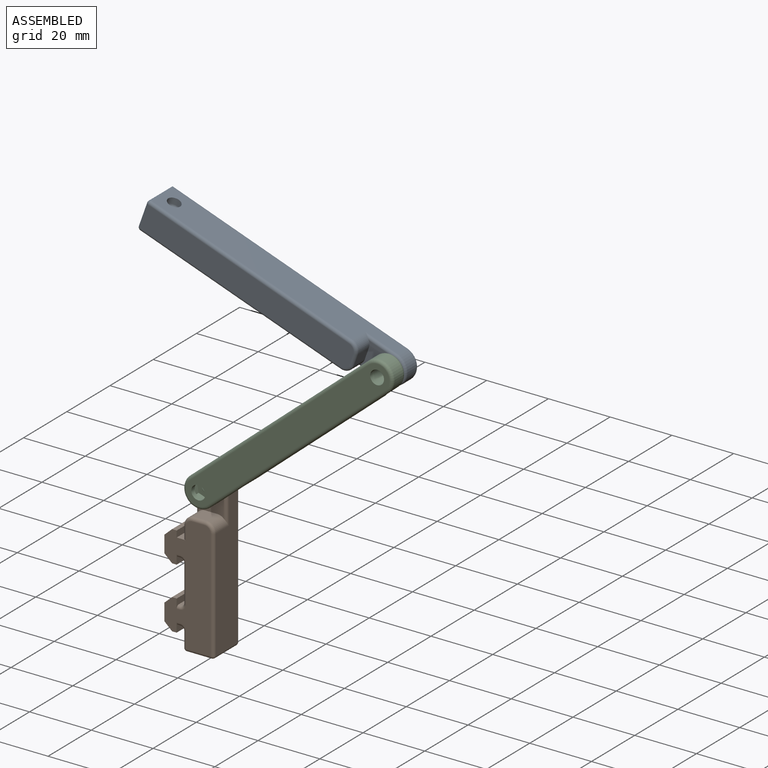
[diagram: assembled view]
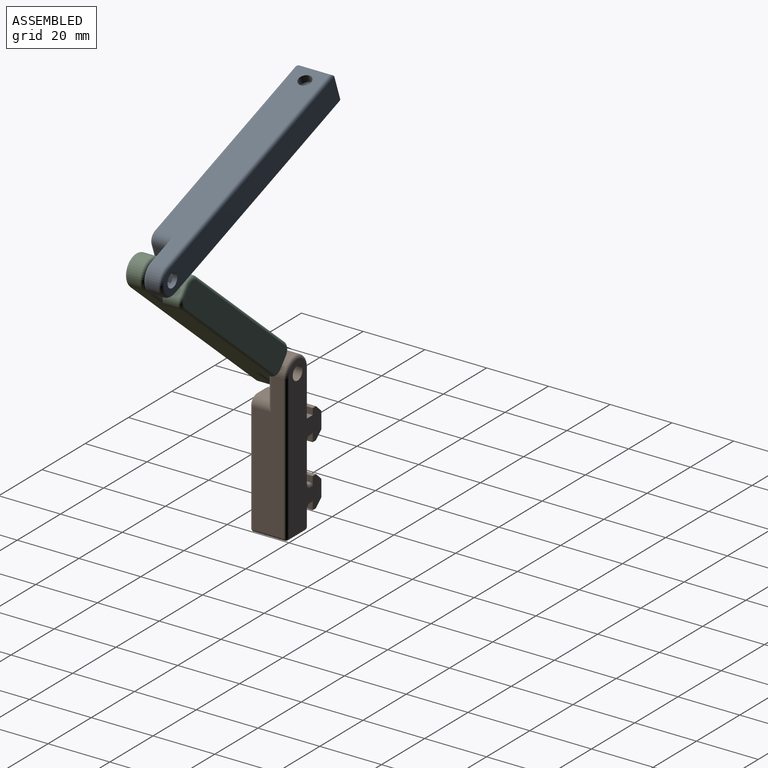
[diagram: assembled view, second angle]
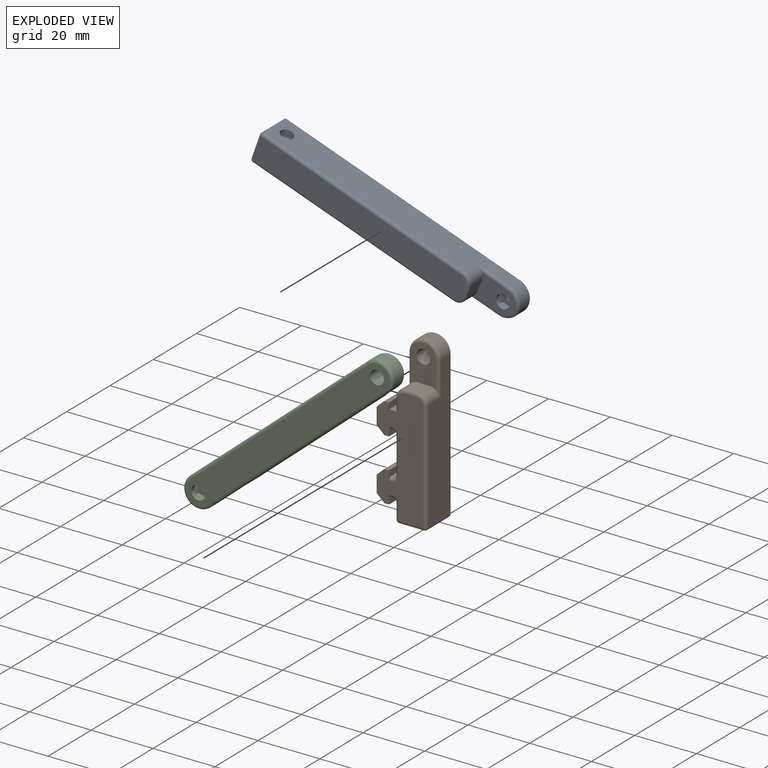
[diagram: exploded view]
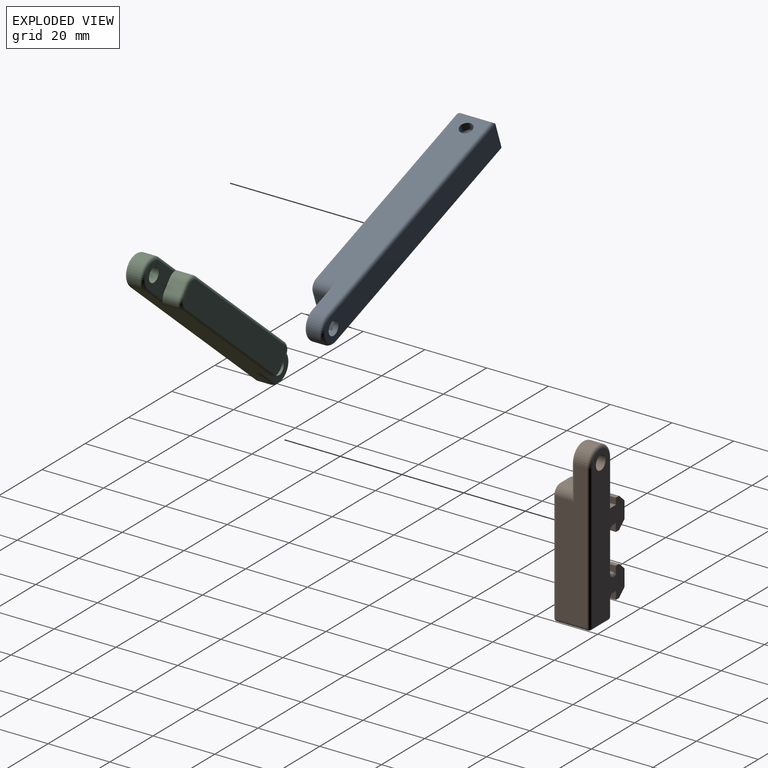
[diagram: exploded view, second angle]
ASSEMBLY  parts=3 mates=2
PART A: 42 faces, bbox 10.8x86.4x12 mm
  f0: cylinder r=2.25mm len=4.5mm, axis (0,0,1), area 18.4mm2, adj f15,f18
  f1: cylinder r=1mm len=2mm, axis (-1,0,0), area 12.6mm2, adj f9,f12
  f2: plane 5x4mm, normal (0,1,0), area 20mm2, adj f15,f16,f17,f33
  f3: plane 85x8mm, normal (0,0,1), area 657.2mm2, adj f4,f14,f26,f27,f31
  f4: plane 11x8mm, normal (0,-1,0), area 88mm2, adj f3,f28,f34,f35
  f5: plane 71x8mm, normal (0,0,-1), area 566.3mm2, adj f29,f30,f33,f35,f36,f38
  f6: plane 80x10mm, normal (1,0,0), area 720.8mm2, adj f8,f13,f17,f26,f28,f29,f39
  f7: plane 80x10mm, normal (-1,0,0), area 705.7mm2, adj f11,f13,f16,f31,f34,f38,f41
  f8: cylinder r=2.05mm len=4.1mm, axis (1,0,0), area 25.8mm2, adj f6,f10
  f9: plane 2.1x2.1mm, normal (1,0,0), area 0.3mm2, adj f1,f10
  f10: torus R=1.05mm, axis (1,0,0), area 16.6mm2, adj f8,f9
  f11: cylinder r=3mm len=6mm, axis (-1,0,0), area 94.2mm2, adj f7,f12
  f12: plane 6x6mm, normal (-1,0,0), area 25.1mm2, adj f1,f11
  f13: cylinder r=5mm len=10mm, axis (0,0,1), area 62.8mm2, adj f6,f7,f27,f40
  f14: cylinder r=2.25mm len=4.5mm, axis (0,0,1), area 21.2mm2, adj f3,f19
  f15: plane 12.76x8mm, normal (0,0,-1), area 74.2mm2, adj f0,f2,f16,f17,f39,f40,f41
  f16: cylinder r=3mm len=6mm, axis (0,0,1), area 24.5mm2, adj f2,f7,f15,f36,f41
  f17: cylinder r=3mm len=6mm, axis (0,0,-1), area 24.5mm2, adj f2,f6,f15,f30,f39
  f18: plane 8.31x7.2mm, normal (0,0,1), area 29mm2, adj f0,f20,f21,f22,f23,f24,f25
  f19: plane 8.31x7.2mm, normal (0,0,-1), area 29mm2, adj f14,f20,f21,f22,f23,f24,f25
  f20: plane 3.6x3.2mm, normal (-0.5,0.87,0), area 13.3mm2, adj f18,f19,f21,f25
  f21: plane 4.16x3.2mm, normal (-1,0,0), area 13.3mm2, adj f18,f19,f20,f22
  f22: plane 3.6x3.2mm, normal (-0.5,-0.87,0), area 13.3mm2, adj f18,f19,f21,f23
  f23: plane 3.6x3.2mm, normal (0.5,-0.87,0), area 13.3mm2, adj f18,f19,f22,f24
  f24: plane 4.16x3.2mm, normal (1,0,0), area 13.3mm2, adj f18,f19,f23,f25
  f25: plane 3.6x3.2mm, normal (0.5,0.87,0), area 13.3mm2, adj f18,f19,f20,f24
  f26: cylinder r=1mm len=81mm, axis (0,1,0), area 126.7mm2, adj f3,f6,f27,f28
  f27: torus R=4mm, axis (0,0,-1), area 22.9mm2, adj f3,f13,f26,f31
  f28: cylinder r=1mm len=11mm, axis (0,0,1), area 16.7mm2, adj f4,f6,f26,f32
  f29: cylinder r=1mm len=69mm, axis (0,-1,0), area 108.4mm2, adj f5,f6,f30,f32
  f30: torus R=2mm, axis (0,0,-1), area 6.5mm2, adj f5,f17,f29,f33
  f31: cylinder r=1mm len=81mm, axis (0,-1,0), area 126.7mm2, adj f3,f7,f27,f34
  f32: sphere r=1mm, area 1.6mm2, adj f28,f29,f35
  f33: cylinder r=1mm len=4mm, axis (-1,0,0), area 6.3mm2, adj f2,f5,f30,f36
  f34: cylinder r=1mm len=11mm, axis (0,0,-1), area 16.7mm2, adj f4,f7,f31,f37
  f35: cylinder r=1mm len=8mm, axis (1,0,0), area 12.6mm2, adj f4,f5,f32,f37
  f36: torus R=2mm, axis (0,0,-1), area 6.5mm2, adj f5,f16,f33,f38
  f37: sphere r=1mm, area 1.6mm2, adj f34,f35,f38
  f38: cylinder r=1mm len=69mm, axis (0,1,0), area 108.4mm2, adj f5,f7,f36,f37
  f39: cylinder r=1mm len=11mm, axis (0,-1,0), area 15.3mm2, adj f6,f15,f17,f40
  f40: torus R=4mm, axis (0,0,1), area 22.9mm2, adj f13,f15,f39,f41
  f41: cylinder r=1mm len=11mm, axis (0,1,0), area 15.3mm2, adj f7,f15,f16,f40
PART B: 69 faces, bbox 53.2x12x16.4 mm
  f0: plane 10x1mm, normal (1,0,0), area 10mm2, adj f12,f57,f61,f62
  f1: plane 12x10mm, normal (0,0,-1), area 120mm2, adj f60,f61,f65,f66
  f2: plane 46.8x10mm, normal (0,0,1), area 402mm2, adj f26,f29,f40,f46,f49,f54
  f3: plane 5x4mm, normal (-1,0,0), area 20mm2, adj f28,f29,f30,f51
  f4: plane 15x10mm, normal (0,0,-1), area 84mm2, adj f5,f26,f30,f33,f53,f56
  f5: plane 12x3mm, normal (-1,0,0), area 24.4mm2, adj f4,f6,f13,f14,f33,f53
  f6: plane 12x2.05mm, normal (0,0,1), area 24.6mm2, adj f5,f7,f13,f14
  f7: plane 12x1.5mm, normal (-1,0,0), area 18mm2, adj f6,f8,f13,f14
  f8: plane 12x2.5mm, normal (-0.74,0,-0.68), area 40.8mm2, adj f7,f9,f13,f14
  f9: plane 12x5.4mm, normal (0,0,-1), area 64.8mm2, adj f8,f10,f13,f14
  f10: plane 12x2.5mm, normal (0.74,0,-0.68), area 40.8mm2, adj f9,f11,f13,f14
  f11: plane 12x1.5mm, normal (1,0,0), area 18mm2, adj f10,f12,f13,f14
  f12: plane 12x3.05mm, normal (0,0,1), area 25mm2, adj f0,f11,f13,f14,f57,f62
  f13: plane 37.8x15mm, normal (0,-1,0), area 398.2mm2, adj f5,f6,f7,f8,f9,f10,f11,f12
  f14: plane 50.8x15mm, normal (0,1,0), area 481.1mm2, adj f5,f6,f7,f8,f9,f10,f11,f12
  f15: plane 10x1mm, normal (-1,0,0), area 10mm2, adj f25,f59,f65,f68
  f16: plane 10x8mm, normal (1,0,0), area 80mm2, adj f41,f42,f46,f47
  f17: plane 10x5mm, normal (0,0,-1), area 50mm2, adj f34,f35,f42,f43
  f18: plane 10x1mm, normal (1,0,0), area 10mm2, adj f19,f31,f35,f36
  f19: plane 12x3.05mm, normal (0,0,1), area 25mm2, adj f13,f14,f18,f20,f31,f36
  f20: plane 12x1.5mm, normal (1,0,0), area 18mm2, adj f13,f14,f19,f21
  f21: plane 12x2.5mm, normal (0.74,0,-0.68), area 40.8mm2, adj f13,f14,f20,f22
  f22: plane 12x5.4mm, normal (0,0,-1), area 64.8mm2, adj f13,f14,f21,f23
  f23: plane 12x2.5mm, normal (-0.74,0,-0.68), area 40.8mm2, adj f13,f14,f22,f24
  f24: plane 12x1.5mm, normal (-1,0,0), area 18mm2, adj f13,f14,f23,f25
  f25: plane 12x3.05mm, normal (0,0,1), area 25mm2, adj f13,f14,f15,f24,f59,f68
  f26: cylinder r=5mm len=10mm, axis (0,1,0), area 62.8mm2, adj f2,f4,f37,f55
  f27: cylinder r=2.25mm len=6mm, axis (0,1,0), area 84.8mm2, adj f14,f28
  f28: plane 12.76x8mm, normal (0,-1,0), area 74.2mm2, adj f3,f27,f29,f30,f54,f55,f56
  f29: cylinder r=3mm len=6mm, axis (0,1,0), area 24.5mm2, adj f2,f3,f28,f50,f54
  f30: cylinder r=3mm len=6mm, axis (0,1,0), area 24.5mm2, adj f3,f4,f28,f52,f56
  f31: cylinder r=1mm len=1mm, axis (0,0,-1), area 1.6mm2, adj f14,f18,f19,f32
  f32: torus R=2mm, axis (0,-1,0), area 3.4mm2, adj f14,f31,f34,f35
  f33: cylinder r=1mm len=15mm, axis (1,0,0), area 23.6mm2, adj f4,f5,f14,f37
  f34: cylinder r=1mm len=5mm, axis (-1,0,0), area 7.9mm2, adj f14,f17,f32,f38
  f35: cylinder r=1mm len=10mm, axis (0,1,0), area 15.7mm2, adj f17,f18,f32,f39
  f36: cylinder r=1mm len=1mm, axis (0,0,1), area 1.6mm2, adj f13,f18,f19,f39
  f37: torus R=4mm, axis (0,-1,0), area 22.9mm2, adj f14,f26,f33,f40
  f38: sphere r=1mm, area 1.6mm2, adj f34,f41,f42
  f39: torus R=2mm, axis (0,-1,0), area 3.4mm2, adj f13,f35,f36,f43
  f40: cylinder r=1mm len=46.8mm, axis (-1,0,0), area 73.5mm2, adj f2,f14,f37,f44
  f41: cylinder r=1mm len=8mm, axis (0,0,-1), area 12.6mm2, adj f14,f16,f38,f44
  f42: cylinder r=1mm len=10mm, axis (0,1,0), area 15.7mm2, adj f16,f17,f38,f45
  f43: cylinder r=1mm len=5mm, axis (1,0,0), area 7.9mm2, adj f13,f17,f39,f45
  f44: sphere r=1mm, area 1.6mm2, adj f40,f41,f46
  f45: sphere r=1mm, area 1.6mm2, adj f42,f43,f47
  f46: cylinder r=1mm len=10mm, axis (0,1,0), area 15.7mm2, adj f2,f16,f44,f48
  f47: cylinder r=1mm len=8mm, axis (0,0,1), area 12.6mm2, adj f13,f16,f45,f48
  f48: sphere r=1mm, area 1.6mm2, adj f46,f47,f49
  f49: cylinder r=1mm len=35.8mm, axis (1,0,0), area 56.2mm2, adj f2,f13,f48,f50
  f50: torus R=2mm, axis (0,-1,0), area 6.5mm2, adj f13,f29,f49,f51
  f51: cylinder r=1mm len=4mm, axis (0,0,1), area 6.3mm2, adj f3,f13,f50,f52
  f52: torus R=2mm, axis (0,-1,0), area 6.5mm2, adj f13,f30,f51,f53
  f53: cylinder r=1mm len=4mm, axis (-1,0,0), area 6.3mm2, adj f4,f5,f13,f52
  f54: cylinder r=1mm len=11mm, axis (-1,0,0), area 15.3mm2, adj f2,f28,f29,f55
  f55: torus R=4mm, axis (0,-1,0), area 22.9mm2, adj f26,f28,f54,f56
  f56: cylinder r=1mm len=11mm, axis (-1,0,0), area 15.3mm2, adj f4,f28,f30,f55
  f57: cylinder r=1mm len=1mm, axis (0,0,1), area 1.6mm2, adj f0,f12,f14,f58
  f58: torus R=2mm, axis (0,-1,0), area 3.4mm2, adj f14,f57,f60,f61
  f59: cylinder r=1mm len=1mm, axis (0,0,1), area 1.6mm2, adj f14,f15,f25,f63
  f60: cylinder r=1mm len=12mm, axis (1,0,0), area 18.8mm2, adj f1,f14,f58,f63
  f61: cylinder r=1mm len=10mm, axis (0,1,0), area 15.7mm2, adj f0,f1,f58,f64
  f62: cylinder r=1mm len=1mm, axis (0,0,-1), area 1.6mm2, adj f0,f12,f13,f64
  f63: torus R=2mm, axis (0,-1,0), area 3.4mm2, adj f14,f59,f60,f65
  f64: torus R=2mm, axis (0,-1,0), area 3.4mm2, adj f13,f61,f62,f66
  f65: cylinder r=1mm len=10mm, axis (0,1,0), area 15.7mm2, adj f1,f15,f63,f67
  f66: cylinder r=1mm len=12mm, axis (-1,0,0), area 18.8mm2, adj f1,f13,f64,f67
  f67: torus R=2mm, axis (0,-1,0), area 3.4mm2, adj f13,f65,f66,f68
  f68: cylinder r=1mm len=1mm, axis (0,0,-1), area 1.6mm2, adj f13,f15,f25,f67
PART C: 43 faces, bbox 86.8x12x10.8 mm
  f0: cylinder r=2.25mm len=4.5mm, axis (0,-1,0), area 18.4mm2, adj f9,f17
  f1: plane 5x4mm, normal (1,0,0), area 20mm2, adj f12,f13,f15,f29
  f2: plane 5x4mm, normal (-1,0,0), area 20mm2, adj f9,f14,f16,f28
  f3: plane 84x8mm, normal (0,-1,0), area 626.5mm2, adj f8,f11,f39,f40,f41,f42
  f4: plane 58x8mm, normal (0,1,0), area 460.6mm2, adj f25,f26,f27,f28,f29,f30,f31,f32
  f5: plane 76x10mm, normal (0,0,1), area 628mm2, adj f7,f10,f15,f16,f25,f33,f36,f39
  f6: plane 76x10mm, normal (0,0,-1), area 628mm2, adj f7,f10,f13,f14,f32,f35,f38,f42
  f7: cylinder r=5mm len=10mm, axis (0,-1,0), area 62.8mm2, adj f5,f6,f37,f41
  f8: cylinder r=2.25mm len=4.5mm, axis (0,-1,0), area 21.2mm2, adj f3,f18
  f9: plane 12.76x8mm, normal (0,1,0), area 74.2mm2, adj f0,f2,f14,f16,f36,f37,f38
  f10: cylinder r=5mm len=10mm, axis (0,-1,0), area 62.8mm2, adj f5,f6,f34,f40
  f11: cylinder r=2.25mm len=6mm, axis (0,-1,0), area 84.8mm2, adj f3,f12
  f12: plane 12.76x8mm, normal (0,1,0), area 74.2mm2, adj f1,f11,f13,f15,f33,f34,f35
  f13: cylinder r=3mm len=6mm, axis (0,1,0), area 24.5mm2, adj f1,f6,f12,f31,f35
  f14: cylinder r=3mm len=6mm, axis (0,-1,0), area 24.5mm2, adj f2,f6,f9,f30,f38
  f15: cylinder r=3mm len=6mm, axis (0,-1,0), area 24.5mm2, adj f1,f5,f12,f27,f33
  f16: cylinder r=3mm len=6mm, axis (0,1,0), area 24.5mm2, adj f2,f5,f9,f26,f36
  f17: plane 8.31x7.2mm, normal (0,-1,0), area 29mm2, adj f0,f19,f20,f21,f22,f23,f24
  f18: plane 8.31x7.2mm, normal (0,1,0), area 29mm2, adj f8,f19,f20,f21,f22,f23,f24
  f19: plane 3.6x3.2mm, normal (-0.87,0,0.5), area 13.3mm2, adj f17,f18,f20,f24
  f20: plane 3.6x3.2mm, normal (-0.87,0,-0.5), area 13.3mm2, adj f17,f18,f19,f21
  f21: plane 4.16x3.2mm, normal (0,0,-1), area 13.3mm2, adj f17,f18,f20,f22
  f22: plane 3.6x3.2mm, normal (0.87,0,-0.5), area 13.3mm2, adj f17,f18,f21,f23
  f23: plane 3.6x3.2mm, normal (0.87,0,0.5), area 13.3mm2, adj f17,f18,f22,f24
  f24: plane 4.16x3.2mm, normal (0,0,1), area 13.3mm2, adj f17,f18,f19,f23
  f25: cylinder r=1mm len=54mm, axis (1,0,0), area 84.8mm2, adj f4,f5,f26,f27
  f26: torus R=2mm, axis (0,1,0), area 6.5mm2, adj f4,f16,f25,f28
  f27: torus R=2mm, axis (0,1,0), area 6.5mm2, adj f4,f15,f25,f29
  f28: cylinder r=1mm len=4mm, axis (0,0,-1), area 6.3mm2, adj f2,f4,f26,f30
  f29: cylinder r=1mm len=4mm, axis (0,0,-1), area 6.3mm2, adj f1,f4,f27,f31
  f30: torus R=2mm, axis (0,1,0), area 6.5mm2, adj f4,f14,f28,f32
  f31: torus R=2mm, axis (0,1,0), area 6.5mm2, adj f4,f13,f29,f32
  f32: cylinder r=1mm len=54mm, axis (-1,0,0), area 84.8mm2, adj f4,f6,f30,f31
  f33: cylinder r=1mm len=11mm, axis (-1,0,0), area 15.3mm2, adj f5,f12,f15,f34
  f34: torus R=4mm, axis (0,-1,0), area 22.9mm2, adj f10,f12,f33,f35
  f35: cylinder r=1mm len=11mm, axis (1,0,0), area 15.3mm2, adj f6,f12,f13,f34
  f36: cylinder r=1mm len=11mm, axis (1,0,0), area 15.3mm2, adj f5,f9,f16,f37
  f37: torus R=4mm, axis (0,-1,0), area 22.9mm2, adj f7,f9,f36,f38
  f38: cylinder r=1mm len=11mm, axis (-1,0,0), area 15.3mm2, adj f6,f9,f14,f37
  f39: cylinder r=1mm len=76mm, axis (-1,0,0), area 119.4mm2, adj f3,f5,f40,f41
  f40: torus R=4mm, axis (0,-1,0), area 22.9mm2, adj f3,f10,f39,f42
  f41: torus R=4mm, axis (0,-1,0), area 22.9mm2, adj f3,f7,f39,f42
  f42: cylinder r=1mm len=76mm, axis (1,0,0), area 119.4mm2, adj f3,f6,f40,f41
PLACE A rot(axis=(-0.71,-0.5,-0.5),109.4deg) t=(-26.29,-23.62,3.19)mm
PLACE B rot(axis=(0,1,0),90deg) t=(-45.61,-17.62,-74.22)mm fixed
PLACE C rot(axis=(0,-1,0),40.4deg) t=(-31.28,-29.62,-54.9)mm
MATE revolute B.f26 <-> C.f0  axis (0,-1,0) through (-40.61,-23.62,-56.27)mm
MATE revolute C.f10 <-> A.f0  axis (0,-1,0) through (17.31,-23.62,-7.06)mm
